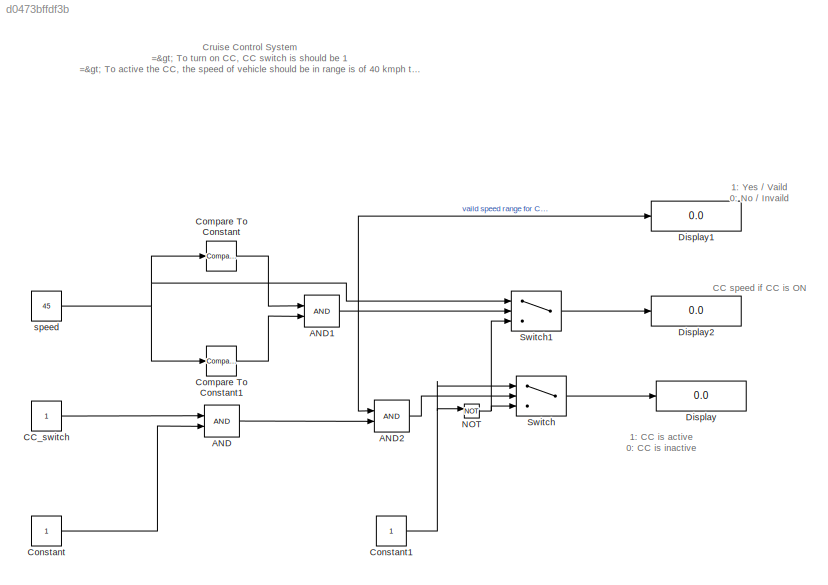
MODEL slx_d0473bffdf3b
KIND model
CONFIG AbsTol = auto
CONFIG EnableMultiTasking = off
CONFIG FixedStep = auto
CONFIG MaxStep = auto
CONFIG MinStep = auto
CONFIG RelTol = 1e-3
CONFIG SampleTimeConstraint = Unconstrained
CONFIG SolverName = VariableStepAuto
CONFIG StartTime = 0.0
CONFIG StopTime = inf
BLOCK [Logic] AND
  AllPortsSameDT = off
  IconShape = distinctive
  OutDataTypeStr = boolean
BLOCK [Logic] AND1
  AllPortsSameDT = off
  IconShape = distinctive
  OutDataTypeStr = boolean
BLOCK [Logic] AND2
  AllPortsSameDT = off
  IconShape = distinctive
  OutDataTypeStr = boolean
BLOCK [Constant] CC_switch
BLOCK [Reference] Compare To Constant  REF=simulink/Logic and Bit
Operations/Compare
To Constant
  SourceBlock = simulink/Logic and Bit\nOperations/Compare\nTo Constant
  SourceType = Compare To Constant
BLOCK [Reference] Compare To Constant1  REF=simulink/Logic and Bit
Operations/Compare
To Constant
  SourceBlock = simulink/Logic and Bit\nOperations/Compare\nTo Constant
  SourceType = Compare To Constant
BLOCK [Constant] Constant
BLOCK [Constant] Constant1
BLOCK [Display] Display
  Decimation = 1
BLOCK [Display] Display1
  Decimation = 1
BLOCK [Display] Display2
  Decimation = 1
BLOCK [Logic] NOT
  AllPortsSameDT = off
  IconShape = distinctive
  Operator = NOT
  OutDataTypeStr = boolean
BLOCK [Switch] Switch
  Criteria = u2 > Threshold
  InputSameDT = off
  SaturateOnIntegerOverflow = off
BLOCK [Switch] Switch1
  Criteria = u2 > Threshold
  InputSameDT = off
  SaturateOnIntegerOverflow = off
BLOCK [Constant] speed
  Value = 45
ANNOTATION (root): 1: CC is active 0: CC is inactive
ANNOTATION (root): 1: Yes / Vaild 0: No / Invaild
ANNOTATION (root): Cruise Control System => To turn on CC, CC switch is should be 1 => To active the CC, the speed of vehicle should be in range is of 40 kmph to 60 kmph
ANNOTATION (root): CC speed if CC is ON
NET AND1:1 -> AND2:1, Display1:1, Switch1:2
LINE AND2:1 -> Switch:2
LINE AND:1 -> AND2:2
LINE CC_switch:1 -> AND:1
LINE Compare To Constant1:1 -> AND1:2
LINE Compare To Constant:1 -> AND1:1
NET Constant1:1 -> NOT:1, Switch:1
LINE Constant:1 -> AND:2
NET NOT:1 -> Switch1:3, Switch:3
LINE Switch1:1 -> Display2:1
LINE Switch:1 -> Display:1
NET speed:1 -> Compare To Constant1:1, Compare To Constant:1, Switch1:1
note: NET lines group one-source signal fan-out (src -> all destinations, sorted); 1:1 wires keep LINE
